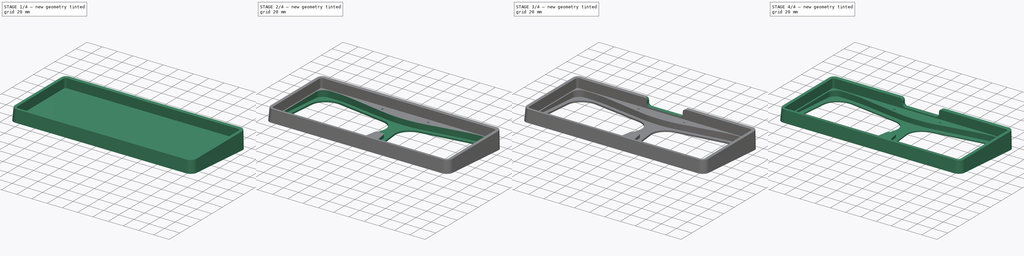
[diagram: build sequence overview — one tinted view per stage of 4, left to right]
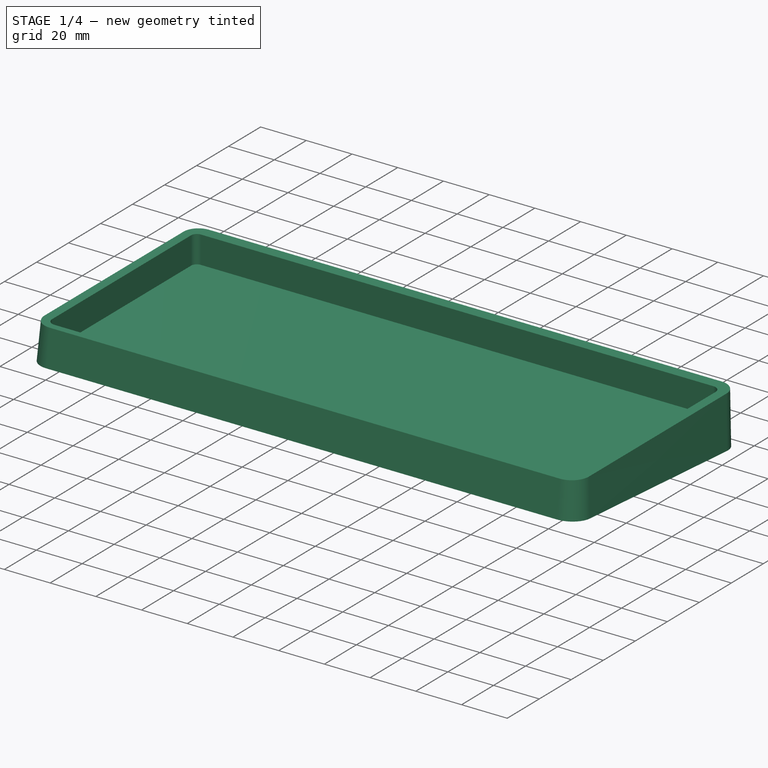
[diagram: stage 1 of 4 — iso view after this stage's code; geometry added in this stage tinted green]
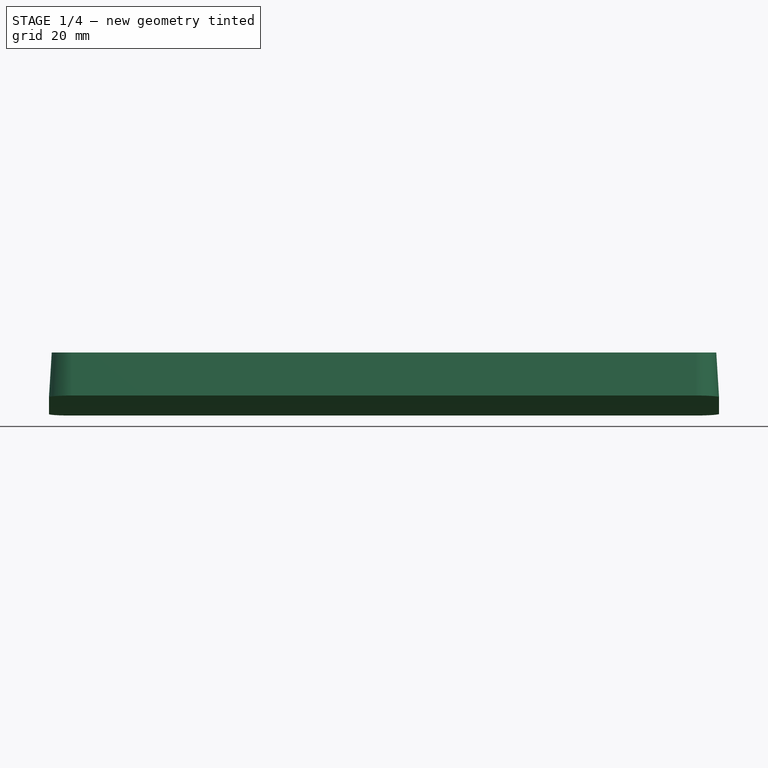
[diagram: stage 1 of 4 — front view after this stage's code; geometry added in this stage tinted green]
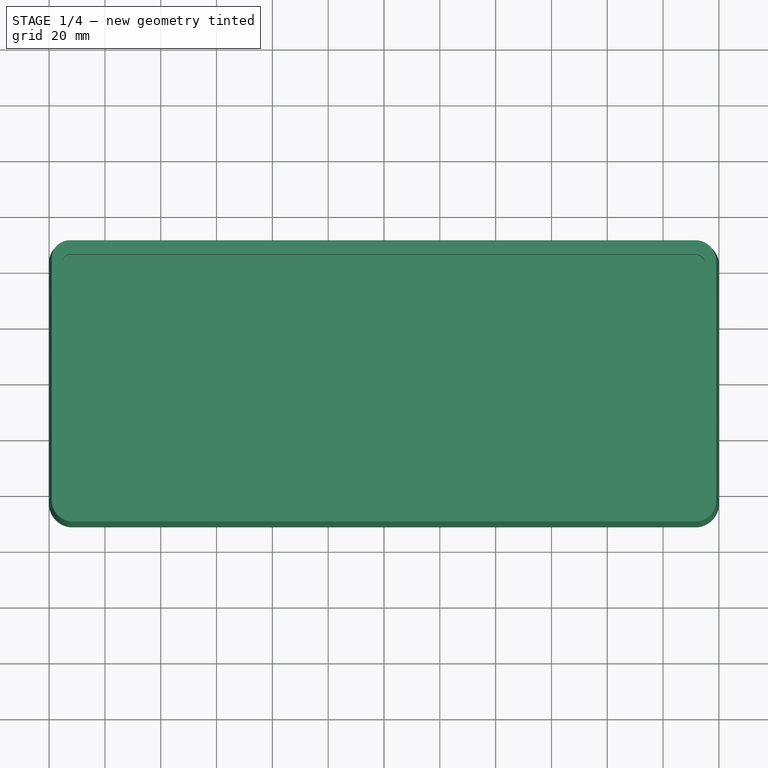
[diagram: stage 1 of 4 — top view after this stage's code; geometry added in this stage tinted green]
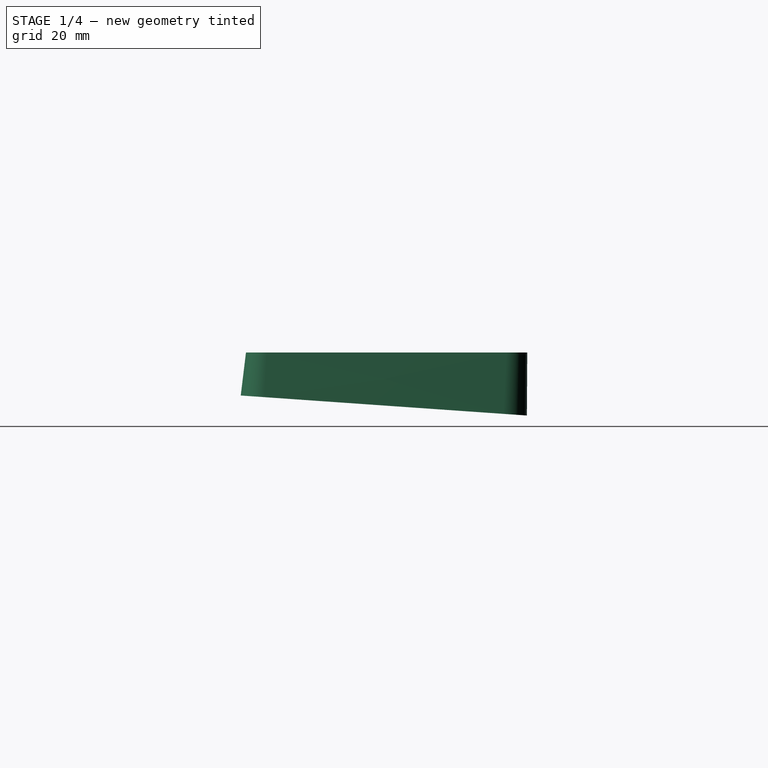
[diagram: stage 1 of 4 — right view after this stage's code; geometry added in this stage tinted green]
FCSTD DOCUMENT  (FreeCAD 0.20R)
Label: case
License: All rights reserved
LicenseURL: http://en.wikipedia.org/wiki/All_rights_reserved
objects: Sketcher::SketchObject×7, PartDesign::Pocket×4, PartDesign::Fillet×3, PartDesign::AdditiveLoft×1, PartDesign::Hole×1, PartDesign::Chamfer×1, PartDesign::Body×1
note: 28 computed .brp shape members not serialized (recipe doc carries the construction recipe); baked Part::Feature solids carry a one-line shape summary decoded from their .brp

FEATURE [Sketcher::SketchObject] Sketch
  FullyConstrained = false
  Placement = pos=(0,0,0) rot=(1,0,0;-0.069813rad)
  Support = -> [XY_Plane]
  sketch-geometry (8):
    g0: LineSegment StartX=-112.573 StartY=51.4001 StartZ=0 EndX=111.573 EndY=51.4001 EndZ=0
    g1: ArcOfCircle CenterX=-112.573 CenterY=43.9001 CenterZ=0 NormalX=0 NormalY=0 NormalZ=1 AngleXU=0 Radius=7.5 StartAngle=1.5708 EndAngle=3.14159
    g2: LineSegment StartX=-120.073 StartY=43.9001 StartZ=0 EndX=-120.073 EndY=-42.9001 EndZ=0
    g3: ArcOfCircle CenterX=-111.573 CenterY=-42.9001 CenterZ=0 NormalX=0 NormalY=0 NormalZ=1 AngleXU=0 Radius=8.5 StartAngle=3.14159 EndAngle=4.71239
    g4: LineSegment StartX=111.573 StartY=-51.4001 StartZ=0 EndX=-111.573 EndY=-51.4001 EndZ=0
    g5: ArcOfCircle CenterX=111.573 CenterY=-42.9001 CenterZ=0 NormalX=0 NormalY=0 NormalZ=1 AngleXU=0 Radius=8.5 StartAngle=4.71239 EndAngle=6.28319
    g6: LineSegment StartX=120.073 StartY=42.9001 StartZ=0 EndX=120.073 EndY=-42.9001 EndZ=0
    g7: ArcOfCircle CenterX=111.573 CenterY=42.9001 CenterZ=0 NormalX=0 NormalY=0 NormalZ=1 AngleXU=0 Radius=8.5 StartAngle=0 EndAngle=1.5708
  constraints (8):
    c: Coincident(g2,g3)
    c: Coincident(g1,g2)
    c: Coincident(g0,g1)
    c: Coincident(g3,g4)
    c: Coincident(g4,g5)
    c: Coincident(g0,g7)
    c: Coincident(g5,g6)
    c: Coincident(g6,g7)
FEATURE [Sketcher::SketchObject] Sketch001
  AttachmentOffset = pos=(0,1,19) rot=(0,0,1;0rad)
  FullyConstrained = false
  MapMode = 5
  Placement = pos=(0,1,19) rot=(0,0,1;0rad)
  Support = -> [XY_Plane]
  sketch-geometry (8):
    g0: LineSegment StartX=-112.573 StartY=50.4001 StartZ=0 EndX=111.573 EndY=50.4001 EndZ=0
    g1: ArcOfCircle CenterX=111.573 CenterY=42.9001 CenterZ=0 NormalX=0 NormalY=0 NormalZ=1 AngleXU=0 Radius=7.5 StartAngle=0 EndAngle=1.5708
    g2: LineSegment StartX=119.073 StartY=42.9001 StartZ=0 EndX=119.073 EndY=-42.9001 EndZ=0
    g3: ArcOfCircle CenterX=111.573 CenterY=-42.9001 CenterZ=0 NormalX=0 NormalY=0 NormalZ=1 AngleXU=0 Radius=7.5 StartAngle=4.71239 EndAngle=6.28319
    g4: LineSegment StartX=111.573 StartY=-50.4001 StartZ=0 EndX=-111.573 EndY=-50.4001 EndZ=0
    g5: ArcOfCircle CenterX=-111.573 CenterY=-42.9001 CenterZ=0 NormalX=0 NormalY=0 NormalZ=1 AngleXU=0 Radius=7.5 StartAngle=3.14159 EndAngle=4.71239
    g6: LineSegment StartX=-119.073 StartY=43.9001 StartZ=0 EndX=-119.073 EndY=-42.9001 EndZ=0
    g7: ArcOfCircle CenterX=-112.573 CenterY=43.9001 CenterZ=0 NormalX=0 NormalY=0 NormalZ=1 AngleXU=0 Radius=6.5 StartAngle=1.5708 EndAngle=3.14159
  constraints (8):
    c: Coincident(g5,g6)
    c: Coincident(g6,g7)
    c: Coincident(g0,g7)
    c: Coincident(g4,g5)
    c: Coincident(g3,g4)
    c: Coincident(g0,g1)
    c: Coincident(g2,g3)
    c: Coincident(g1,g2)
FEATURE [PartDesign::AdditiveLoft] AdditiveLoft
  Closed = true
  Profile = -> Sketch
  Ruled = true
  Sections = -> [Sketch001]
FEATURE [Sketcher::SketchObject] Sketch002
  FullyConstrained = false
  MapMode = 5
  Placement = pos=(0,0,19) rot=(0,0,1;0rad)
  Support = -> [AdditiveLoft]
  sketch-geometry (8):
    g0: LineSegment StartX=-112.573 StartY=46.4001 StartZ=0 EndX=111.573 EndY=46.4001 EndZ=0
    g1: ArcOfCircle CenterX=111.573 CenterY=42.9001 CenterZ=0 NormalX=0 NormalY=0 NormalZ=1 AngleXU=0 Radius=3.5 StartAngle=0 EndAngle=1.5708
    g2: LineSegment StartX=115.073 StartY=42.9001 StartZ=0 EndX=115.073 EndY=-42.9001 EndZ=0
    g3: ArcOfCircle CenterX=111.573 CenterY=-42.9001 CenterZ=0 NormalX=0 NormalY=0 NormalZ=1 AngleXU=0 Radius=3.5 StartAngle=4.71239 EndAngle=6.28319
    g4: LineSegment StartX=111.573 StartY=-46.4001 StartZ=0 EndX=-111.573 EndY=-46.4001 EndZ=0
    g5: ArcOfCircle CenterX=-111.573 CenterY=-42.9001 CenterZ=0 NormalX=0 NormalY=0 NormalZ=1 AngleXU=0 Radius=3.5 StartAngle=3.14159 EndAngle=4.71239
    g6: LineSegment StartX=-115.073 StartY=43.9001 StartZ=0 EndX=-115.073 EndY=-42.9001 EndZ=0
    g7: ArcOfCircle CenterX=-112.573 CenterY=43.9001 CenterZ=0 NormalX=0 NormalY=0 NormalZ=1 AngleXU=0 Radius=2.5 StartAngle=1.5708 EndAngle=3.14159
  constraints (8):
    c: Coincident(g5,g6)
    c: Coincident(g6,g7)
    c: Coincident(g0,g7)
    c: Coincident(g4,g5)
    c: Coincident(g3,g4)
    c: Coincident(g0,g1)
    c: Coincident(g2,g3)
    c: Coincident(g1,g2)
FEATURE [PartDesign::Pocket] Pocket
  BaseFeature = -> AdditiveLoft
  Direction = (0,0,-1)
  Length = 12
  Length2 = 5
  Profile = -> Sketch002
  ReferenceAxis = -> Sketch002 [N_Axis]
  Type = 0
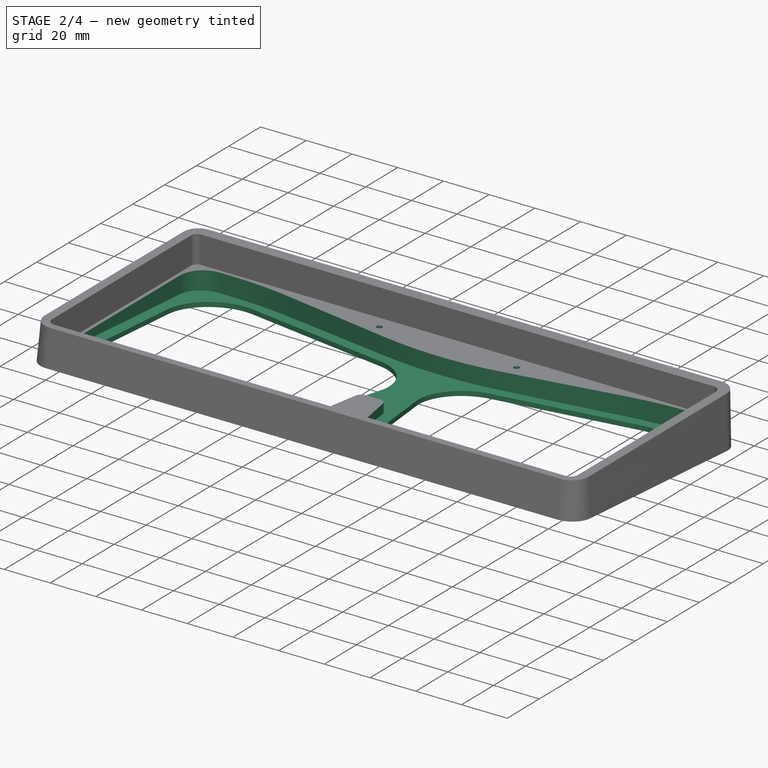
[diagram: stage 2 of 4 — iso view after this stage's code; geometry added in this stage tinted green]
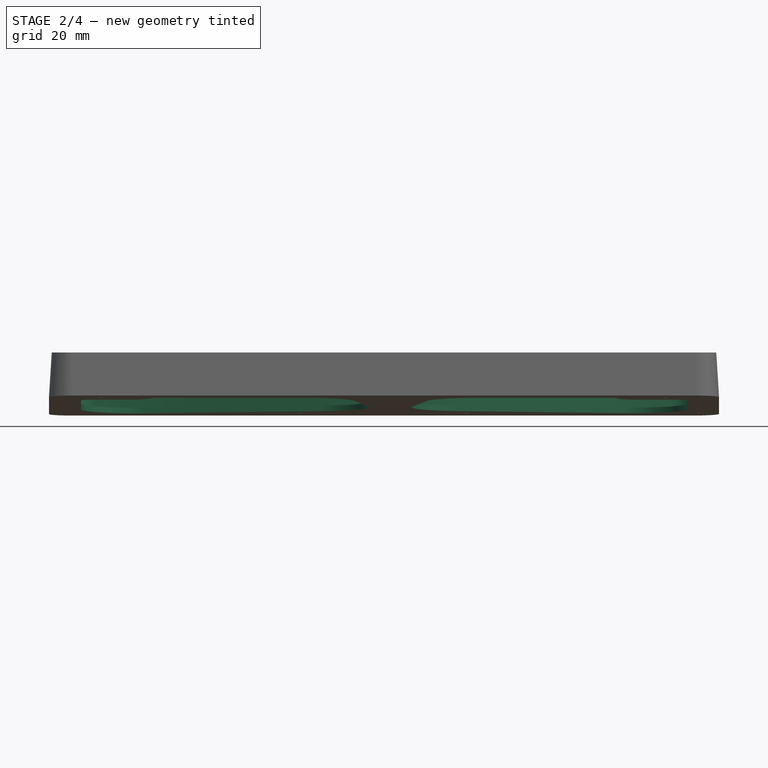
[diagram: stage 2 of 4 — front view after this stage's code; geometry added in this stage tinted green]
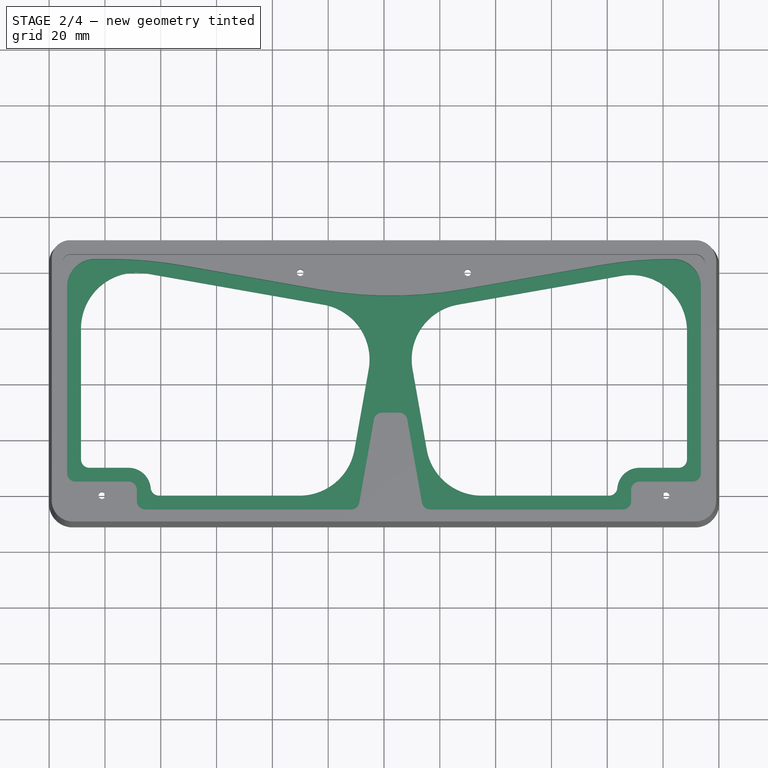
[diagram: stage 2 of 4 — top view after this stage's code; geometry added in this stage tinted green]
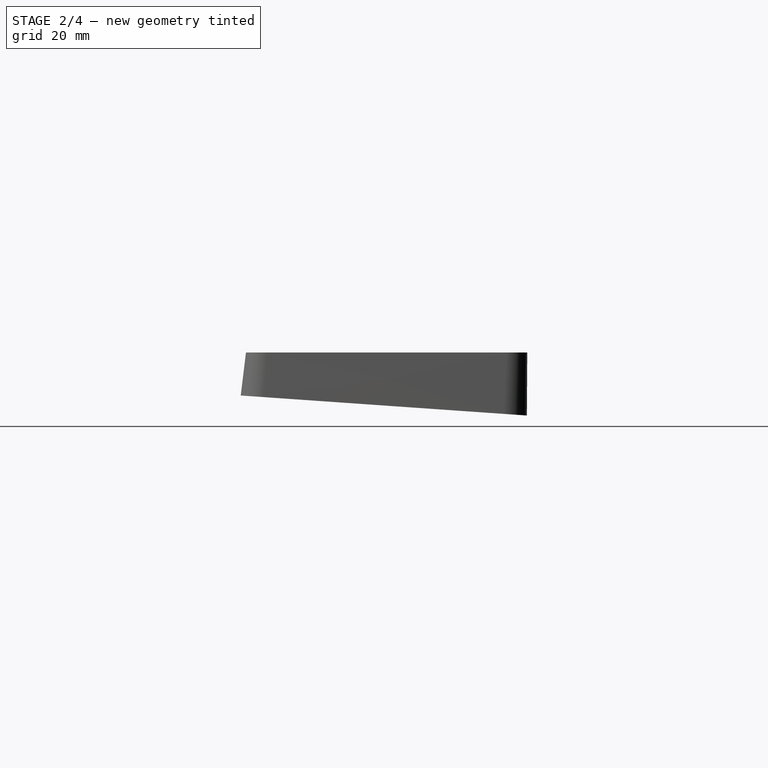
[diagram: stage 2 of 4 — right view after this stage's code; geometry added in this stage tinted green]
FEATURE [Sketcher::SketchObject] Sketch003
  FullyConstrained = false
  MapMode = 5
  Placement = pos=(0,0,7) rot=(0,0,1;0rad)
  Support = -> [Pocket]
  sketch-geometry (34):
    g0: ArcOfCircle CenterX=110.573 CenterY=-31.9001 CenterZ=0 NormalX=0 NormalY=0 NormalZ=1 AngleXU=0 Radius=3 StartAngle=4.71239 EndAngle=6.28319
    g1: ArcOfCircle CenterX=85.5732 CenterY=-41.9001 CenterZ=0 NormalX=0 NormalY=0 NormalZ=1 AngleXU=0 Radius=3 StartAngle=4.71239 EndAngle=6.28319
    g2: LineSegment StartX=88.5732 StartY=-37.9001 StartZ=0 EndX=88.5732 EndY=-41.9001 EndZ=0
    g3: LineSegment StartX=110.573 StartY=-34.9001 StartZ=0 EndX=91.5732 EndY=-34.9001 EndZ=0
    g4: ArcOfCircle CenterX=91.5732 CenterY=-37.9001 CenterZ=0 NormalX=0 NormalY=0 NormalZ=1 AngleXU=0 Radius=3 StartAngle=1.5708 EndAngle=3.14159
    g5: Circle CenterX=101.073 CenterY=-39.9001 CenterZ=0 NormalX=0 NormalY=0 NormalZ=-1 AngleXU=0 Radius=1.1
    g6: ArcOfCircle CenterX=-91.5732 CenterY=-37.9001 CenterZ=0 NormalX=0 NormalY=0 NormalZ=1 AngleXU=0 Radius=3 StartAngle=0 EndAngle=1.5708
    g7: LineSegment StartX=-110.573 StartY=-34.9001 StartZ=0 EndX=-91.5732 EndY=-34.9001 EndZ=0
    g8: ArcOfCircle CenterX=-110.573 CenterY=-31.9001 CenterZ=0 NormalX=0 NormalY=0 NormalZ=1 AngleXU=0 Radius=3 StartAngle=3.14159 EndAngle=4.71239
    g9: LineSegment StartX=-88.5732 StartY=-37.9001 StartZ=0 EndX=-88.5732 EndY=-41.9001 EndZ=0
    g10: ArcOfCircle CenterX=-85.5732 CenterY=-41.9001 CenterZ=0 NormalX=0 NormalY=0 NormalZ=1 AngleXU=0 Radius=3 StartAngle=3.14159 EndAngle=4.71239
    g11: Circle CenterX=-101.073 CenterY=-39.9001 CenterZ=0 NormalX=0 NormalY=0 NormalZ=-1 AngleXU=0 Radius=1.1
    g12: ArcOfCircle CenterX=2.375 CenterY=181.78 CenterZ=0 NormalX=0 NormalY=0 NormalZ=1 AngleXU=0 Radius=150 StartAngle=4.53786 EndAngle=4.88692
    g13: LineSegment StartX=28.4222 StartY=34.0589 StartZ=0 EndX=76.9817 EndY=42.6212 EndZ=0
    g14: ArcOfCircle CenterX=103.029 CenterY=-105.1 CenterZ=0 NormalX=0 NormalY=0 NormalZ=1 AngleXU=0 Radius=150 StartAngle=1.5708 EndAngle=1.74533
    g15: LineSegment StartX=-72.2317 StartY=42.6212 StartZ=0 EndX=-23.6722 EndY=34.0589 EndZ=0
    g16: ArcOfCircle CenterX=-98.279 CenterY=-105.1 CenterZ=0 NormalX=0 NormalY=0 NormalZ=1 AngleXU=0 Radius=150 StartAngle=1.39626 EndAngle=1.5708
    g17: Circle CenterX=-30 CenterY=40 CenterZ=0 NormalX=0 NormalY=0 NormalZ=-1 AngleXU=0 Radius=1.1
    g18: Circle CenterX=30 CenterY=40 CenterZ=0 NormalX=0 NormalY=0 NormalZ=-1 AngleXU=0 Radius=1.1
    g19: ArcOfCircle CenterX=-0.646102 CenterY=-13.1744 CenterZ=0 NormalX=0 NormalY=0 NormalZ=1 AngleXU=0 Radius=3 StartAngle=1.5708 EndAngle=2.96706
    g20: LineSegment StartX=-0.646102 StartY=-10.1744 StartZ=0 EndX=5.3961 EndY=-10.1744 EndZ=0
    g21: ArcOfCircle CenterX=5.3961 CenterY=-13.1744 CenterZ=0 NormalX=0 NormalY=0 NormalZ=1 AngleXU=0 Radius=3 StartAngle=0.174533 EndAngle=1.5708
    g22: LineSegment StartX=85.5732 StartY=-44.9001 StartZ=0 EndX=16.5538 EndY=-44.9001 EndZ=0
    g23: LineSegment StartX=8.35053 StartY=-12.6535 StartZ=0 EndX=13.5993 EndY=-42.421 EndZ=0
    g24: ArcOfCircle CenterX=16.5538 CenterY=-41.9001 CenterZ=0 NormalX=0 NormalY=0 NormalZ=1 AngleXU=0 Radius=3 StartAngle=3.31613 EndAngle=4.71239
    g25: LineSegment StartX=-3.60053 StartY=-12.6535 StartZ=0 EndX=-8.84935 EndY=-42.421 EndZ=0
    g26: LineSegment StartX=-11.8038 StartY=-44.9001 StartZ=0 EndX=-85.5732 EndY=-44.9001 EndZ=0
    g27: ArcOfCircle CenterX=-11.8038 CenterY=-41.9001 CenterZ=0 NormalX=0 NormalY=0 NormalZ=1 AngleXU=0 Radius=3 StartAngle=4.71239 EndAngle=6.10865
    g28: LineSegment StartX=103.029 StartY=44.9001 StartZ=0 EndX=103.573 EndY=44.9001 EndZ=0
    g29: LineSegment StartX=113.573 StartY=34.9001 StartZ=0 EndX=113.573 EndY=-31.9001 EndZ=0
    g30: ArcOfCircle CenterX=103.573 CenterY=34.9001 CenterZ=0 NormalX=0 NormalY=0 NormalZ=1 AngleXU=0 Radius=10 StartAngle=0 EndAngle=1.5708
    g31: LineSegment StartX=-103.573 StartY=44.9001 StartZ=0 EndX=-98.279 EndY=44.9001 EndZ=0
    g32: LineSegment StartX=-113.573 StartY=34.9001 StartZ=0 EndX=-113.573 EndY=-31.9001 EndZ=0
    g33: ArcOfCircle CenterX=-103.573 CenterY=34.9001 CenterZ=0 NormalX=0 NormalY=0 NormalZ=1 AngleXU=0 Radius=10 StartAngle=1.5708 EndAngle=3.14159
FEATURE [PartDesign::Pocket] Pocket001
  BaseFeature = -> Pocket
  Direction = (0,0,-1)
  Length = 0
  Length2 = 5
  Offset = -2
  Profile = -> Sketch003
  ReferenceAxis = -> Sketch003 [N_Axis]
  Type = 3
  UpToFace = -> Pocket [Face1]
FEATURE [Sketcher::SketchObject] Sketch004
  FullyConstrained = false
  MapMode = 5
  Placement = pos=(0,0,19) rot=(0,0,1;0rad)
  Support = -> [AdditiveLoft]
  sketch-geometry (22):
    g0: ArcOfCircle CenterX=-91.5732 CenterY=-37.9001 CenterZ=0 NormalX=0 NormalY=0 NormalZ=1 AngleXU=0 Radius=8 StartAngle=0.0910348 EndAngle=1.5708
    g1: ArcOfCircle CenterX=-80.6188 CenterY=-36.9001 CenterZ=0 NormalX=0 NormalY=0 NormalZ=1 AngleXU=0 Radius=3 StartAngle=3.23263 EndAngle=4.71239
    g2: LineSegment StartX=-105.573 StartY=-29.9001 StartZ=0 EndX=-91.5732 EndY=-29.9001 EndZ=0
    g3: ArcOfCircle CenterX=-105.573 CenterY=-26.9001 CenterZ=0 NormalX=0 NormalY=0 NormalZ=1 AngleXU=0 Radius=3 StartAngle=3.14159 EndAngle=4.71239
    g4: ArcOfCircle CenterX=29.9289 CenterY=8.93889 CenterZ=0 NormalX=0 NormalY=0 NormalZ=1 AngleXU=0 Radius=20 StartAngle=1.74533 EndAngle=3.31613
    g5: LineSegment StartX=10.2327 StartY=5.46593 StartZ=0 EndX=15.3178 EndY=-23.373 EndZ=0
    g6: ArcOfCircle CenterX=35.014 CenterY=-19.9001 CenterZ=0 NormalX=0 NormalY=0 NormalZ=1 AngleXU=0 Radius=20 StartAngle=3.31613 EndAngle=4.71239
    g7: LineSegment StartX=26.4559 StartY=28.635 StartZ=0 EndX=85.1003 EndY=38.9756 EndZ=0
    g8: ArcOfCircle CenterX=88.5732 CenterY=19.2795 CenterZ=0 NormalX=0 NormalY=0 NormalZ=1 AngleXU=0 Radius=20 StartAngle=0 EndAngle=1.74533
    g9: LineSegment StartX=-30.264 StartY=-39.9001 StartZ=0 EndX=-80.6188 EndY=-39.9001 EndZ=0
    g10: ArcOfCircle CenterX=-30.264 CenterY=-19.9001 CenterZ=0 NormalX=0 NormalY=0 NormalZ=1 AngleXU=0 Radius=20 StartAngle=4.71239 EndAngle=6.10865
    g11: LineSegment StartX=-5.48272 StartY=5.46593 StartZ=0 EndX=-10.5678 EndY=-23.373 EndZ=0
    g12: ArcOfCircle CenterX=-25.1789 CenterY=8.93889 CenterZ=0 NormalX=0 NormalY=0 NormalZ=1 AngleXU=0 Radius=20 StartAngle=6.10865 EndAngle=7.67945
    g13: LineSegment StartX=-108.573 StartY=20.117 StartZ=0 EndX=-108.573 EndY=-26.9001 EndZ=0
    g14: LineSegment StartX=-85.1003 StartY=39.8132 StartZ=0 EndX=-21.7059 EndY=28.635 EndZ=0
    g15: ArcOfCircle CenterX=-88.5732 CenterY=20.117 CenterZ=0 NormalX=0 NormalY=0 NormalZ=1 AngleXU=0 Radius=20 StartAngle=1.39626 EndAngle=3.14159
    g16: LineSegment StartX=105.573 StartY=-29.9001 StartZ=0 EndX=91.5732 EndY=-29.9001 EndZ=0
    g17: LineSegment StartX=108.573 StartY=19.2795 StartZ=0 EndX=108.573 EndY=-26.9001 EndZ=0
    g18: ArcOfCircle CenterX=105.573 CenterY=-26.9001 CenterZ=0 NormalX=0 NormalY=0 NormalZ=1 AngleXU=0 Radius=3 StartAngle=4.71239 EndAngle=6.28319
    g19: ArcOfCircle CenterX=91.5732 CenterY=-37.9001 CenterZ=0 NormalX=0 NormalY=0 NormalZ=1 AngleXU=0 Radius=8 StartAngle=1.5708 EndAngle=3.05056
    g20: LineSegment StartX=80.6188 StartY=-39.9001 StartZ=0 EndX=35.014 EndY=-39.9001 EndZ=0
    g21: ArcOfCircle CenterX=80.6188 CenterY=-36.9001 CenterZ=0 NormalX=0 NormalY=0 NormalZ=1 AngleXU=0 Radius=3 StartAngle=4.71239 EndAngle=6.19215
  constraints (22):
    c: Coincident(g3,g13)
    c: Coincident(g13,g15)
    c: Coincident(g2,g3)
    c: Coincident(g0,g2)
    c: Coincident(g14,g15)
    c: Coincident(g0,g1)
    c: Coincident(g1,g9)
    c: Coincident(g9,g10)
    c: Coincident(g12,g14)
    c: Coincident(g10,g11)
    c: Coincident(g11,g12)
    c: Coincident(g4,g5)
    c: Coincident(g5,g6)
    c: Coincident(g4,g7)
    c: Coincident(g6,g20)
    c: Coincident(g20,g21)
    c: Coincident(g19,g21)
    c: Coincident(g7,g8)
    c: Coincident(g16,g19)
    c: Coincident(g16,g18)
    c: Coincident(g17,g18)
    c: Coincident(g8,g17)
FEATURE [PartDesign::Pocket] Pocket002
  BaseFeature = -> Pocket001
  Direction = (0,0,-1)
  Length = 5
  Length2 = 5
  Profile = -> Sketch004
  ReferenceAxis = -> Sketch004 [N_Axis]
  Type = 1
FEATURE [Sketcher::SketchObject] Sketch005
  ExternalGeometry = -> [Sketch003]
  FullyConstrained = true
  MapMode = 5
  Placement = pos=(0,0,7) rot=(0,0,1;0rad)
  Support = -> [Pocket]
  sketch-geometry (4):
    g0: Circle CenterX=-30 CenterY=40 CenterZ=0 NormalX=0 NormalY=0 NormalZ=1 AngleXU=0 Radius=1.1
    g1: Circle CenterX=30 CenterY=40 CenterZ=0 NormalX=0 NormalY=0 NormalZ=1 AngleXU=0 Radius=1.1
    g2: Circle CenterX=101.073 CenterY=-39.9001 CenterZ=0 NormalX=0 NormalY=0 NormalZ=1 AngleXU=0 Radius=1.1
    g3: Circle CenterX=-101.073 CenterY=-39.9001 CenterZ=0 NormalX=0 NormalY=0 NormalZ=1 AngleXU=0 Radius=1.1
  constraints (8):
    c: Coincident(g0,g-4)
    c: Coincident(g1,g-3)
    c: Coincident(g2,g-6)
    c: Equal(g3,g2)
    c: Equal(g2,g1)
    c: Equal(g1,g0)
    c: Diameter(g0) = 2.2
    c: Coincident(g-5,g3)
FEATURE [PartDesign::Hole] Hole
  BaseFeature = -> Pocket002
  CustomThreadClearance = 0
  Depth = 531.918
  DepthType = 1
  Diameter = 2.42
  DrillForDepth = false
  DrillPoint = 1
  DrillPointAngle = 118
  HoleCutCountersinkAngle = 90
  HoleCutCustomValues = false
  HoleCutDepth = 0
  HoleCutDiameter = 6.1
  HoleCutType = 0
  ModelThread = false
  Profile = -> Sketch005
  Tapered = false
  TaperedAngle = 90
  ThreadClass = 0
  ThreadDepth = 531.918
  ThreadDepthType = 0
  ThreadDirection = 0
  ThreadFit = 0
  ThreadSize = 7
  ThreadType = 1
  Threaded = false
  UseCustomThreadClearance = false
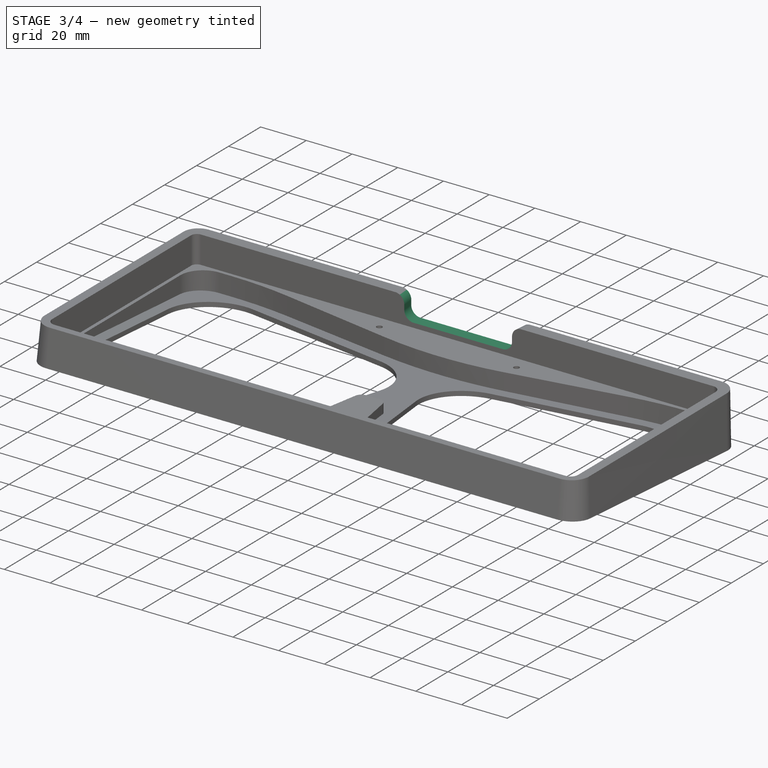
[diagram: stage 3 of 4 — iso view after this stage's code; geometry added in this stage tinted green]
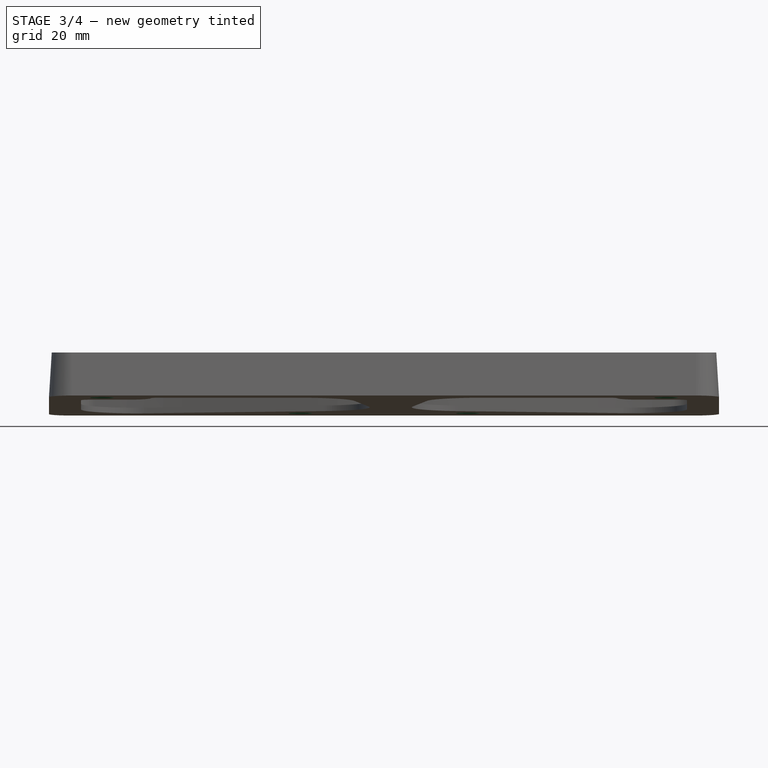
[diagram: stage 3 of 4 — front view after this stage's code; geometry added in this stage tinted green]
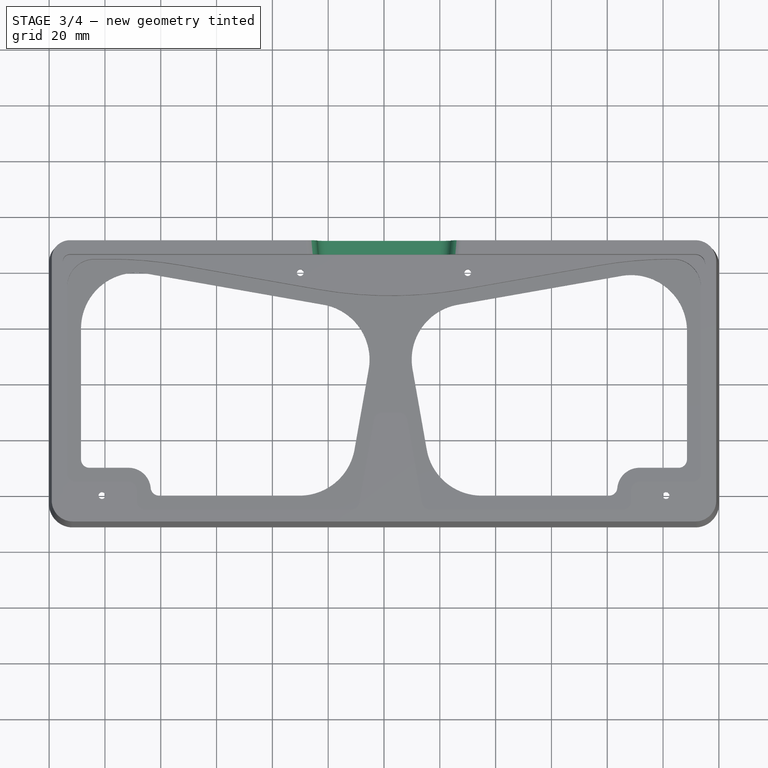
[diagram: stage 3 of 4 — top view after this stage's code; geometry added in this stage tinted green]
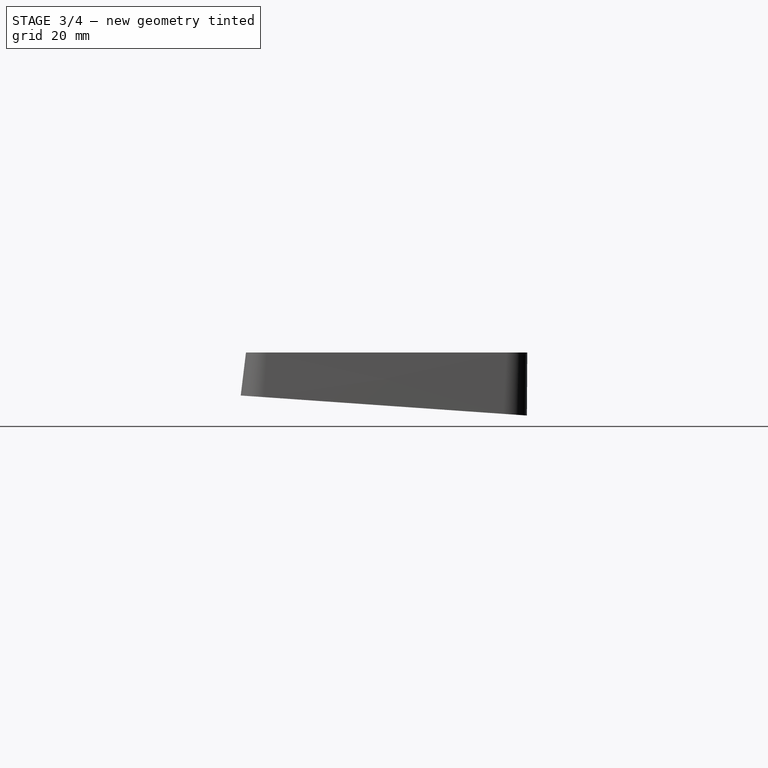
[diagram: stage 3 of 4 — right view after this stage's code; geometry added in this stage tinted green]
FEATURE [PartDesign::Chamfer] Chamfer
  Angle = 45
  Base = -> Hole [Edge21,Edge23,Edge22,Edge9]
  BaseFeature = -> Hole
  ChamferType = 0
  FlipDirection = false
  Size = 3
  Size2 = 1
  SupportTransform = false
  UseAllEdges = false
FEATURE [Sketcher::SketchObject] Sketch006
  ExternalGeometry = -> [Chamfer]
  FullyConstrained = true
  MapMode = 5
  Placement = pos=(0,0,19) rot=(0,0,1;0rad)
  Support = -> [AdditiveLoft]
  sketch-geometry (5):
    g0: LineSegment StartX=-30 StartY=40 StartZ=0 EndX=30 EndY=40 EndZ=0
    g1: LineSegment StartX=-25.6247 StartY=70 StartZ=0 EndX=-23 EndY=40 EndZ=0
    g2: LineSegment StartX=-23 StartY=40 StartZ=0 EndX=23 EndY=40 EndZ=0
    g3: LineSegment StartX=23 StartY=40 StartZ=0 EndX=25.6247 EndY=70 EndZ=0
    g4: LineSegment StartX=25.6247 StartY=70 StartZ=0 EndX=-25.6247 EndY=70 EndZ=0
  constraints (14):
    c: Coincident(g0,g-4)
    c: Coincident(g0,g-3)
    c: PointOnObject(g1,g0)
    c: Coincident(g1,g2)
    c: PointOnObject(g2,g0)
    c: Coincident(g2,g3)
    c: Coincident(g3,g4)
    c: Coincident(g4,g1)
    c: Horizontal(g4)
    c: DistanceX(g0,g1) = 7
    c: DistanceX(g2,g0) = 7
    c: Angle(g2,g1) = 1.65806
    c: Angle(g3,g2) = 1.65806
    c: Distance(g1,g0) = 30
FEATURE [PartDesign::Pocket] Pocket003
  BaseFeature = -> Chamfer
  Direction = (0,0,-1)
  Length = 0
  Length2 = 5
  Offset = -2
  Profile = -> Sketch006
  ReferenceAxis = -> Sketch006 [N_Axis]
  Type = 3
  UpToFace = -> Chamfer [Face42]
FEATURE [PartDesign::Fillet] Fillet
  Base = -> Pocket003 [Edge119,Edge121,Edge109,Edge122]
  BaseFeature = -> Pocket003
  Radius = 4
  SupportTransform = false
  UseAllEdges = false
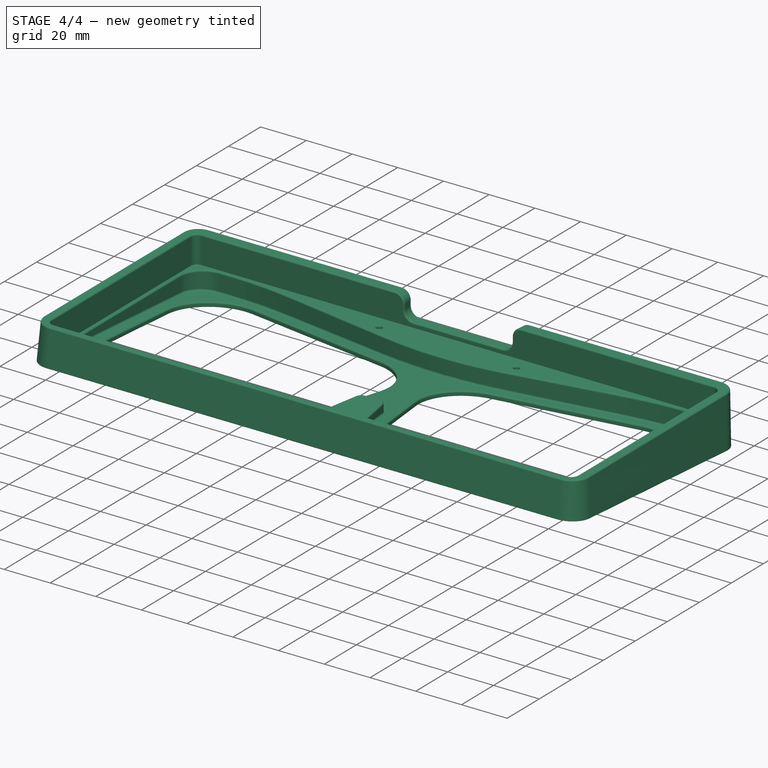
[diagram: stage 4 of 4 — iso view after this stage's code; geometry added in this stage tinted green]
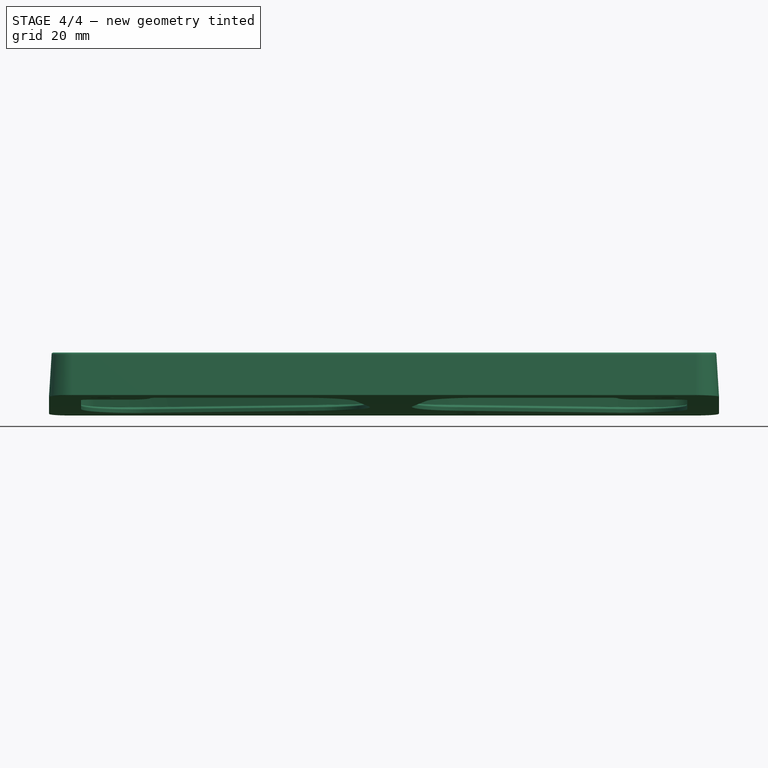
[diagram: stage 4 of 4 — front view after this stage's code; geometry added in this stage tinted green]
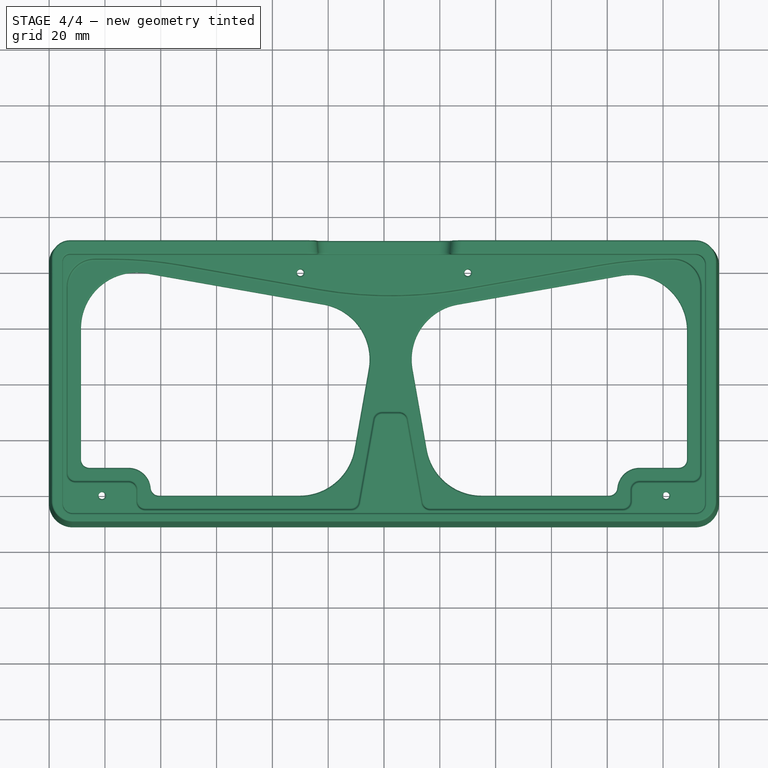
[diagram: stage 4 of 4 — top view after this stage's code; geometry added in this stage tinted green]
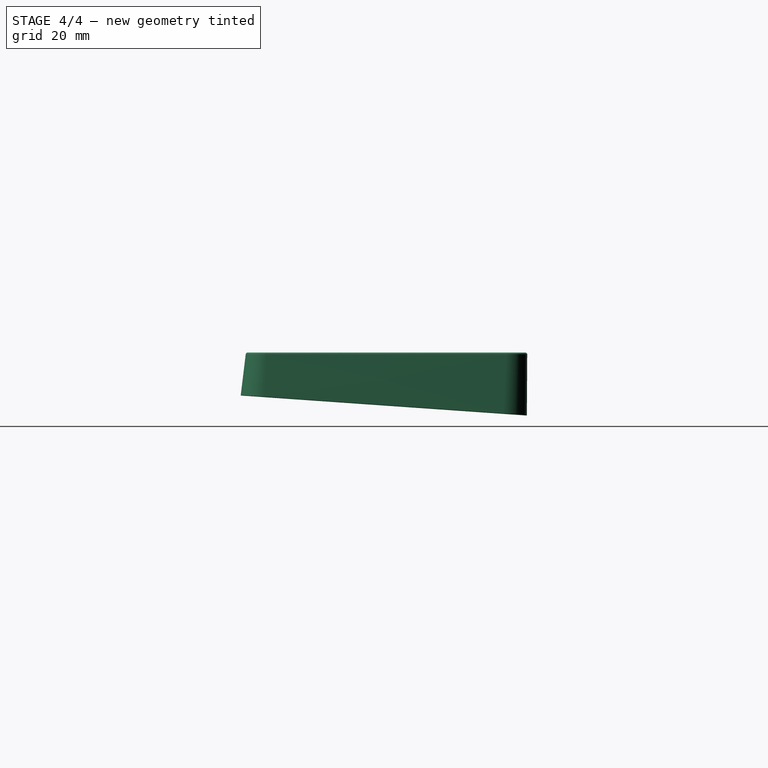
[diagram: stage 4 of 4 — right view after this stage's code; geometry added in this stage tinted green]
FEATURE [PartDesign::Fillet] Fillet001
  Base = -> Fillet [Face54,Face9,Edge166,Edge153,Edge184,Edge151,Edge152]
  BaseFeature = -> Fillet
  Radius = 0.65
  SupportTransform = false
  UseAllEdges = false
FEATURE [PartDesign::Fillet] Fillet002
  Base = -> Fillet001 [Face4]
  BaseFeature = -> Fillet001
  Radius = 0.25
  SupportTransform = false
  UseAllEdges = false
FEATURE [PartDesign::Body] Body
  Group = -> [Sketch,Sketch001,AdditiveLoft,Sketch002,Pocket,Sketch003,Pocket001,Sketch004,Pocket002,Sketch005,Hole,Chamfer,Sketch006,Pocket003,Fillet,Fillet001,Fillet002]
  Origin = -> Origin
  Placement = pos=(0,0,0) rot=(1,0,0;0.069813rad)
  Tip = -> Fillet002
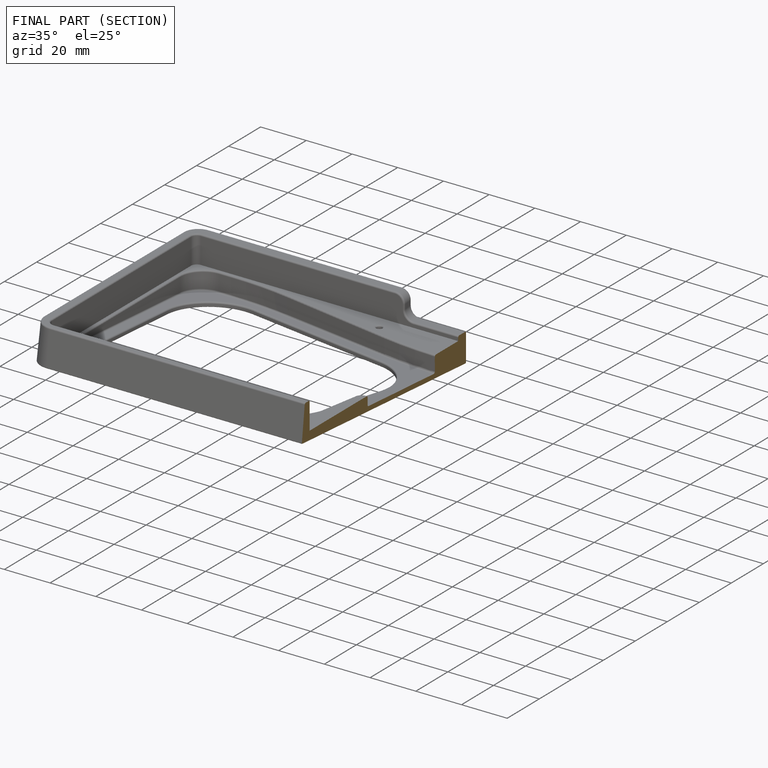
[diagram: finished part — half-section view (interior)]
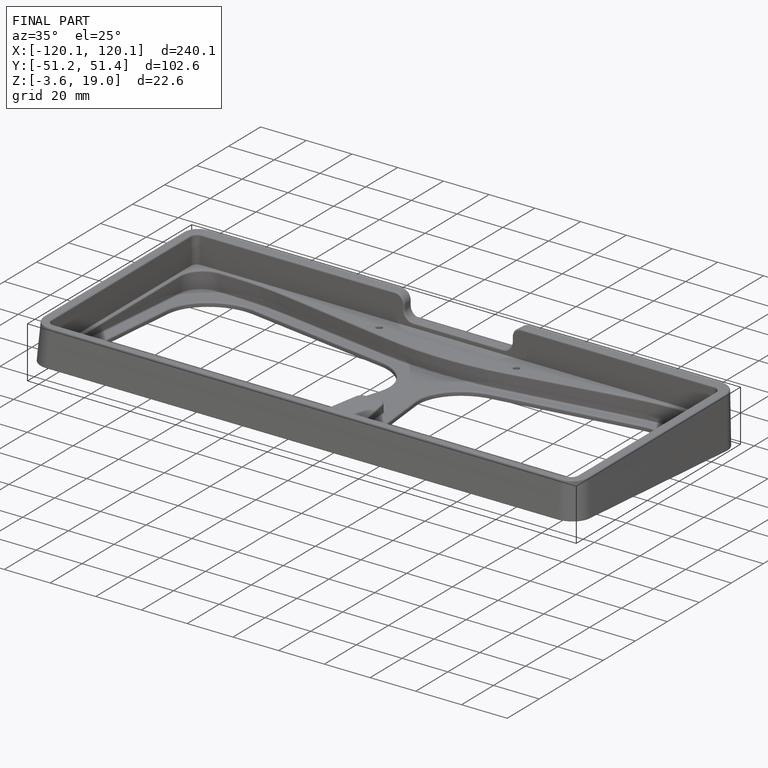
[diagram: finished part — iso view with bounding-box wireframe]
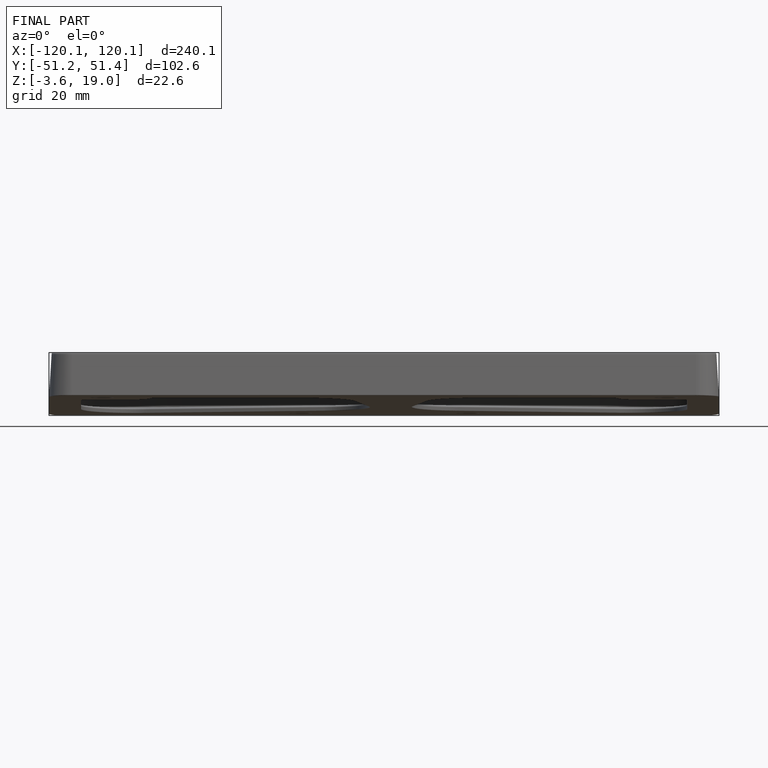
[diagram: finished part — front view with bounding-box wireframe]
